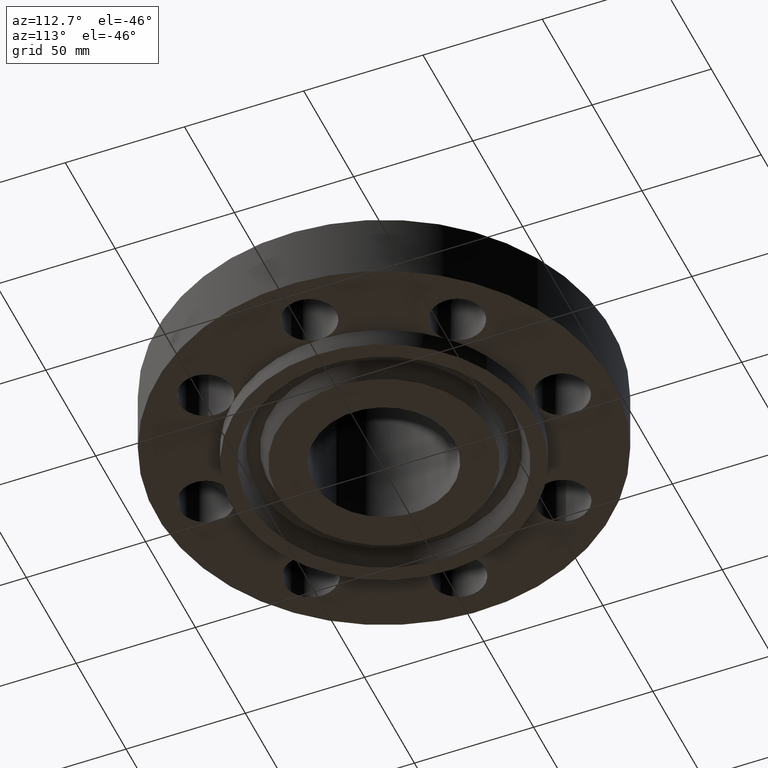
[diagram: clean part render]
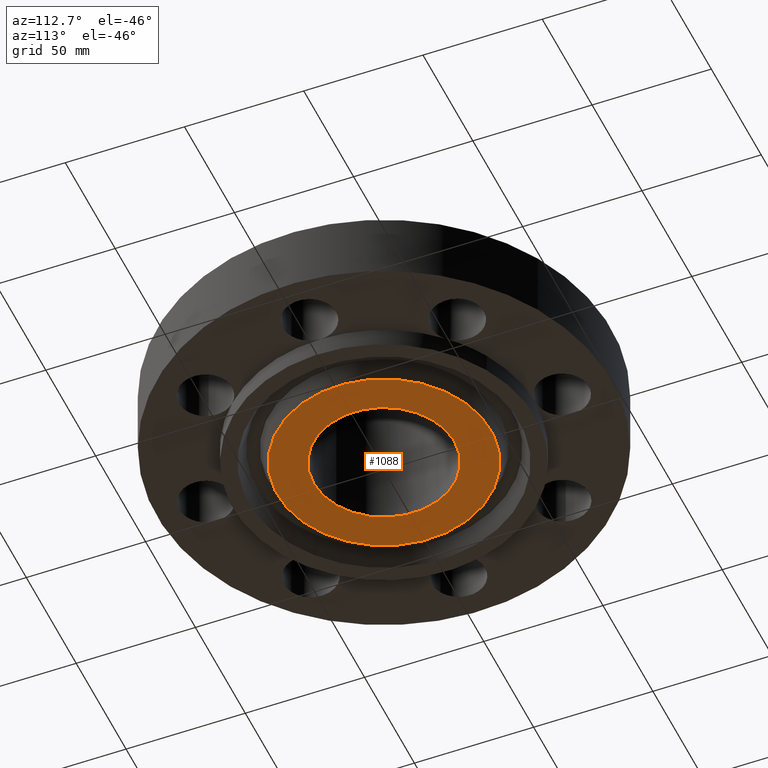
[diagram: same view with one face highlighted and labeled with its STEP entity id]
A machine part, auxiliary view. The second image highlights one B-rep face of the part: STEP entity #1088.
In plain terms, the highlighted planar face has unit normal (0, 0, -1).
Its self-contained STEP definition (entity closure, byte-faithful):
#371=AXIS2_PLACEMENT_3D('Circle Axis2P3D',#369,#370,$) ;
#395=AXIS2_PLACEMENT_3D('Circle Axis2P3D',#393,#394,$) ;
#1041=AXIS2_PLACEMENT_3D('Plane Axis2P3D',#1038,#1039,#1040) ;
#1068=AXIS2_PLACEMENT_3D('Circle Axis2P3D',#1066,#1067,$) ;
#1077=AXIS2_PLACEMENT_3D('Circle Axis2P3D',#1075,#1076,$) ;
#366=CARTESIAN_POINT('Vertex',(0.556852763091,1.01931214564,-0.313000000001)) ;
#369=CARTESIAN_POINT('Axis2P3D Location',(0.,0.,-0.313000000001)) ;
#373=CARTESIAN_POINT('Vertex',(-0.556852763091,-1.01931214564,-0.313000000001)) ;
#393=CARTESIAN_POINT('Axis2P3D Location',(0.,0.,-0.313000000001)) ;
#1038=CARTESIAN_POINT('Axis2P3D Location',(0.,1.1615,-0.313000000001)) ;
#1066=CARTESIAN_POINT('Axis2P3D Location',(5.59482469102E-016,-1.39870617276E-016,-0.313000000001)) ;
#1070=CARTESIAN_POINT('Vertex',(-0.846425788409,1.54937201302,-0.313000000001)) ;
#1072=CARTESIAN_POINT('Vertex',(0.846425788409,-1.54937201302,-0.313000000001)) ;
#1075=CARTESIAN_POINT('Axis2P3D Location',(-4.19611851827E-016,1.39870617276E-016,-0.313000000001)) ;
#370=DIRECTION('Axis2P3D Direction',(0.,0.,-0.0393700787402)) ;
#394=DIRECTION('Axis2P3D Direction',(0.,0.,-0.0393700787402)) ;
#1039=DIRECTION('Axis2P3D Direction',(0.,0.,-0.0393700787402)) ;
#1040=DIRECTION('Axis2P3D XDirection',(0.0393700787402,0.,0.)) ;
#1067=DIRECTION('Axis2P3D Direction',(0.,0.,-0.0393700787402)) ;
#1076=DIRECTION('Axis2P3D Direction',(0.,0.,-0.0393700787402)) ;
#1081=ORIENTED_EDGE('',*,*,#1074,.T.) ;
#1082=ORIENTED_EDGE('',*,*,#1079,.T.) ;
#1085=ORIENTED_EDGE('',*,*,#375,.F.) ;
#1086=ORIENTED_EDGE('',*,*,#397,.F.) ;
#1087=FACE_BOUND('',#1084,.T.) ;
#1088=ADVANCED_FACE('PartBody',(#1083,#1087),#1042,.T.) ;
#372=CIRCLE('generated circle',#371,1.1615) ;
#396=CIRCLE('generated circle',#395,1.1615) ;
#1069=CIRCLE('generated circle',#1068,1.76550000001) ;
#1078=CIRCLE('generated circle',#1077,1.76550000001) ;
#375=EDGE_CURVE('',#367,#374,#372,.T.) ;
#397=EDGE_CURVE('',#374,#367,#396,.T.) ;
#1074=EDGE_CURVE('',#1071,#1073,#1069,.T.) ;
#1079=EDGE_CURVE('',#1073,#1071,#1078,.T.) ;
#1080=EDGE_LOOP('',(#1081,#1082)) ;
#1084=EDGE_LOOP('',(#1085,#1086)) ;
#1083=FACE_OUTER_BOUND('',#1080,.T.) ;
#1042=PLANE('',#1041) ;
#367=VERTEX_POINT('',#366) ;
#374=VERTEX_POINT('',#373) ;
#1071=VERTEX_POINT('',#1070) ;
#1073=VERTEX_POINT('',#1072) ;